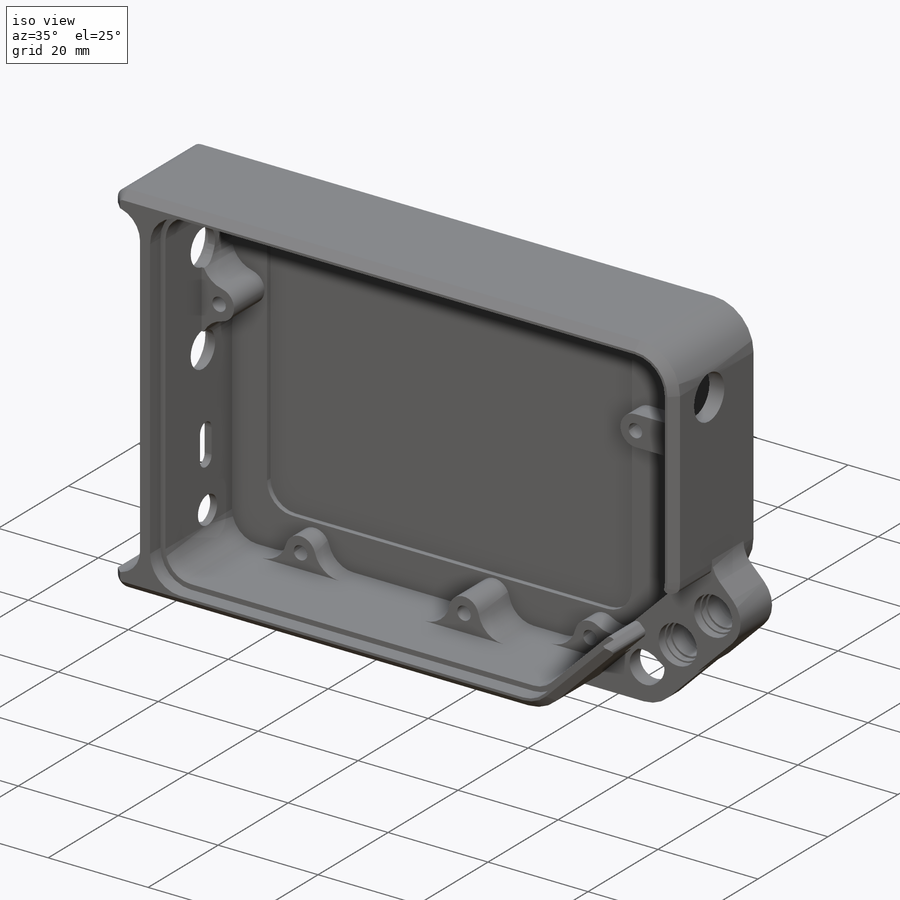
[diagram: iso view]
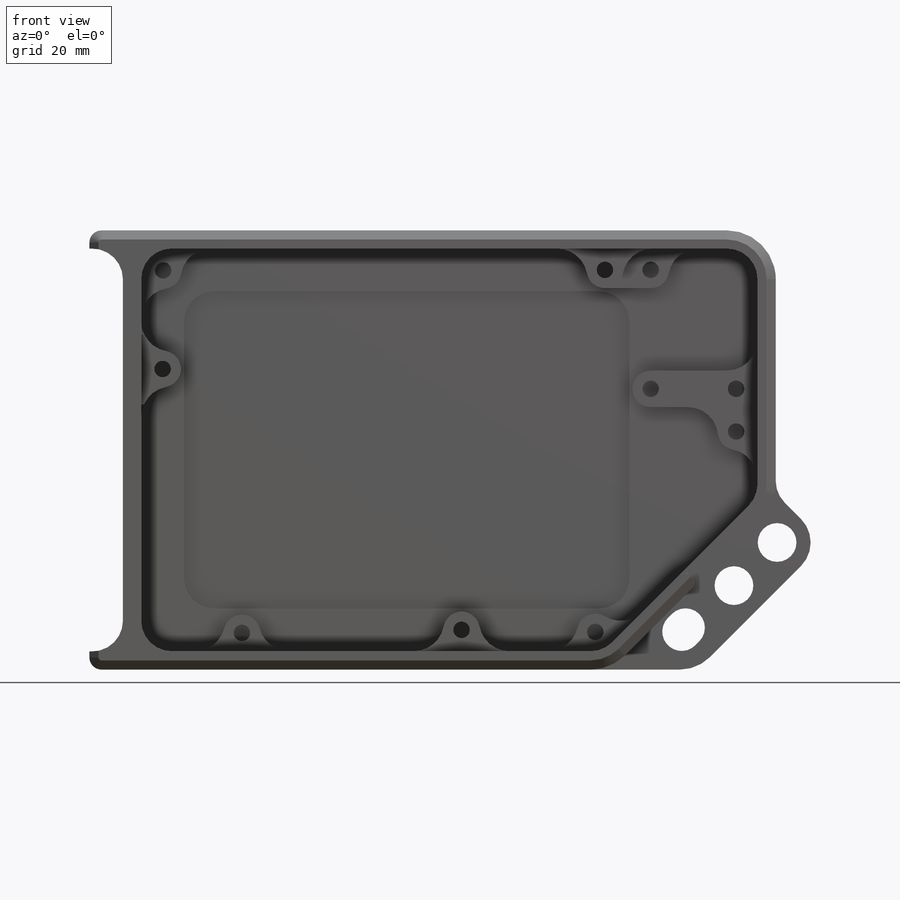
[diagram: front view]
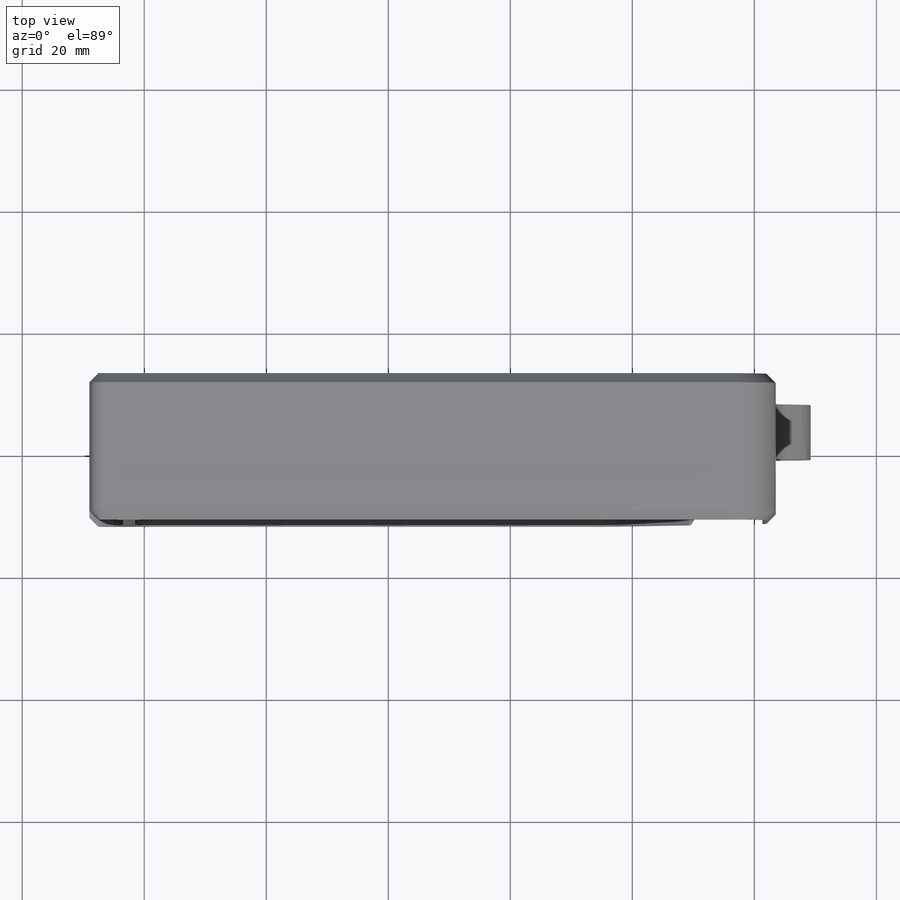
[diagram: top view]
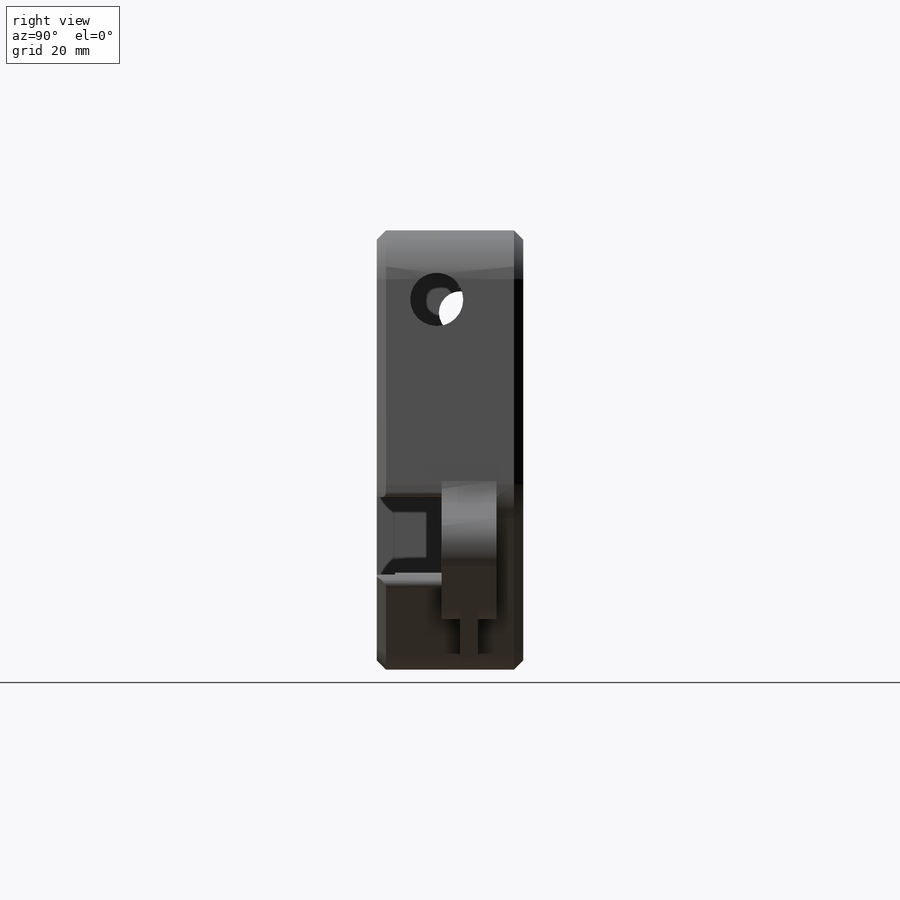
[diagram: right view]
SOLIDWORKS PART (.sldprt)
format: sldprt  version: not decoded by parser v0  size: 1,529,344 bytes
history: native  units: mm
features: sketch x26, extrude x13, cut_extrude x12, fillet x5, chamfer x4, material x1 (+11 scaffold rows collapsed)
feature tree (72):
  scaffold x11  (default folders/planes/origin — collapsed)
  material  "Material <not specified>"
  sketch  "Sketch2"  dims[c1.D2=2.0mm c1.D5=5.3mm c1.D6=5.0mm c2.D5=100.0mm c2.D1=65.0mm c3.D5=100.0mm c3.D7=75.0mm c3.D8=~33.698484mm c4.D8=135.0deg c4.D1=0.0mm c4.D3=0.5mm c4.D4=3.0mm]
  extrude  "Boss-Extrude1"  Depth=1mm
  sketch  "Sketch4"  dims[c1.D1=1.0mm c1.D2=3.0mm c1.D3=7.5mm c1.D4=3.175mm c2.D1=8.5mm]
  extrude  "Boss-Extrude2"  [1 undecoded]
  fillet  "Fillet2"  Radius=2mm
  sketch  "Sketch7"  dims[c1.D1=6.0mm c1.D4=6.0mm c1.D3=2.54mm c1.D5=6.0mm c1.D8=6.0mm c1.D10=6.0mm c1.D2=3.5mm c2.D3=3.5mm c2.D4=2.0mm c2.D6=2.0mm c2.D7=73.3mm c2.D8=52.0mm c3.D7=73.3mm c3.D9=0.5mm c3.D5=75.5mm]
  extrude  "Boss-Extrude3"  [1 undecoded]
  fillet  "Fillet1"  Radius=5mm
  sketch  "Sketch13"  dims[D1=0.0mm]
  extrude  "Boss-Extrude5"  Depth=2mm
  sketch  "Sketch12"  dims[D1=2.7mm]
  cut_extrude  "Cut-Extrude3"  [1 undecoded]
  sketch  "Sketch25"  dims[c1.D1=1.0mm c1.D2=1.0mm c1.D3=~1.407854mm c1.D4=1.0mm c2.D1=65.0mm c2.D2=52.0mm c2.D3=1.0mm c2.D4=1.0mm c3.D1=73.0mm]
  cut_extrude  "Cut-Extrude9"  Depth=1mm
  fillet  "Fillet8"  Radius=5mm
  chamfer  "Chamfer2"  Distance=1.5mm Angle=45deg
  sketch  "Sketch34"  dims[c1.D1=7.1mm c1.D2=11.0mm c1.D4=2.0mm c1.D7=8.0mm c1.D3=10.0mm c1.D5=14.0mm c1.D6=16.0mm c2.D7=10.0mm c2.D6=16.0mm c2.D8=~33.698484mm c3.D8=0.1252deg c4.D8=~1.074361mm c4.D6=1.0mm c4.D5=14.0mm c5.D8=1.0mm]
  sketch  "Sketch35"  dims[D1=7.0mm D2=7.0mm]
  extrude  "Boss-Extrude9"  Depth=3mm
  sketch  "Sketch39"  dims[D1=6.0mm]
  cut_extrude  "Cut-Extrude21"  Depth=9mm
  sketch  "Sketch40"
  extrude  "Boss-Extrude10"  Depth=3mm
  sketch  "Sketch41"  dims[D1=3.1mm]
  extrude  "Boss-Extrude11"  Depth=21mm
  sketch  "Sketch29"  dims[c1.D3=2.0mm c1.D4=6.0mm c2.D3=10.0mm c2.D1=13.0mm c2.D2=8.0mm c2.D5=~25.302854mm]
  cut_extrude  "Cut-Extrude16"  [1 undecoded]
  sketch  "Sketch31"  dims[c1.D1=0.75mm c1.D2=58.5mm c1.D3=2.61mm c2.D2=9.85mm c2.D3=14.18mm c3.D2=11.35mm c3.D3=14.18mm]
  cut_extrude  "Cut-Extrude13"  Depth=11.3mm
  sketch  "Sketch42"  dims[D1=0.0mm]
  extrude  "Boss-Extrude12"  Depth=3mm
  fillet  "Fillet10"  Radius=5mm
  sketch  "Sketch44"  dims[c1.D3=2.0mm c1.D4=2.0mm c2.D3=2.0mm c2.D1=0.0mm c2.D2=2.0mm]
  extrude  "Boss-Extrude13"  Depth=3mm
  sketch  "Sketch37"  dims[c1.D1=7.0mm c1.D2=7.5mm c1.D3=1.5875mm c2.D2=6.35mm c2.D1=2.0mm c3.D1=3.0mm c3.D2=3.0mm c4.D1=3.0mm c4.D3=0.508mm]
  cut_extrude  "Cut-Extrude22"  [1 undecoded]
  chamfer  "Chamfer3"  Distance=1.5mm Angle=45deg
  sketch  "Sketch47"  dims[c1.D1=1.0mm c1.D2=1.0mm c1.D3=8.0mm c2.D1=1.5mm c2.D2=18.0mm]
  cut_extrude  "Cut-Extrude23"  [1 undecoded]
  sketch  "Sketch51"  dims[c1.D1=2.7mm c1.D2=6.0mm c1.D5=3.175mm c1.D3=~0.81702mm c2.D3=45.0deg c2.D4=~81.041573mm c3.D4=67.0deg c3.D3=~1.077297mm c4.D3=45.0deg c4.D5=16.0mm c4.D6=27.5mm c5.D5=16.0mm c5.D7=0.5mm c5.D6=33.0mm]
  extrude  "Boss-Extrude16"  Depth=4mm
  sketch  "Sketch30"  dims[D1=5.5mm D2=7.0mm D3=0.0mm]
  cut_extrude  "Cut-Extrude12"  Depth=13.5mm
  chamfer  "Chamfer4"  Distance=1.5mm Angle=45deg
  sketch  "Sketch52"
  extrude  "Boss-Extrude17"  [1 undecoded]
  chamfer  "Chamfer6"  Distance=2mm Angle=45deg
  sketch  "Sketch54"  dims[c1.D4=2.7mm c1.D1=3.5mm c1.D2=7.0mm c1.D3=4.0mm c2.D4=7.5mm c2.D2=45.0mm c2.D3=7.5mm c3.D2=46.0mm]
  extrude  "Boss-Extrude18"  [1 undecoded]
  fillet  "Fillet11"  Radius=1mm
  sketch  "Sketch55"  dims[D1=6.35mm]
  cut_extrude  "Cut-Extrude24"  Depth=10mm
  sketch  "Sketch56"  dims[D1=2.0mm D2=7.0mm]
  extrude  "Boss-Extrude19"  [1 undecoded]
  sketch  "Sketch57"  dims[D1=16.0mm]
  cut_extrude  "Cut-Extrude26"  Depth=10mm
  sketch  "Sketch58"  dims[D1=0.3mm]
  cut_extrude  "Cut-Extrude27"  Depth=1.3mm
  sketch  "Sketch59"
  cut_extrude  "Cut-Extrude28"  Depth=1.3mm
decode coverage: 48 of 60 modeling features carry decoded parameters
note: ~ marks probable driven/reference dimensions
note: 9 parameter values undecoded
summary: no parameter record found for 9 features
note: suppression state not decoded; provenance and decode notes live in map.json
